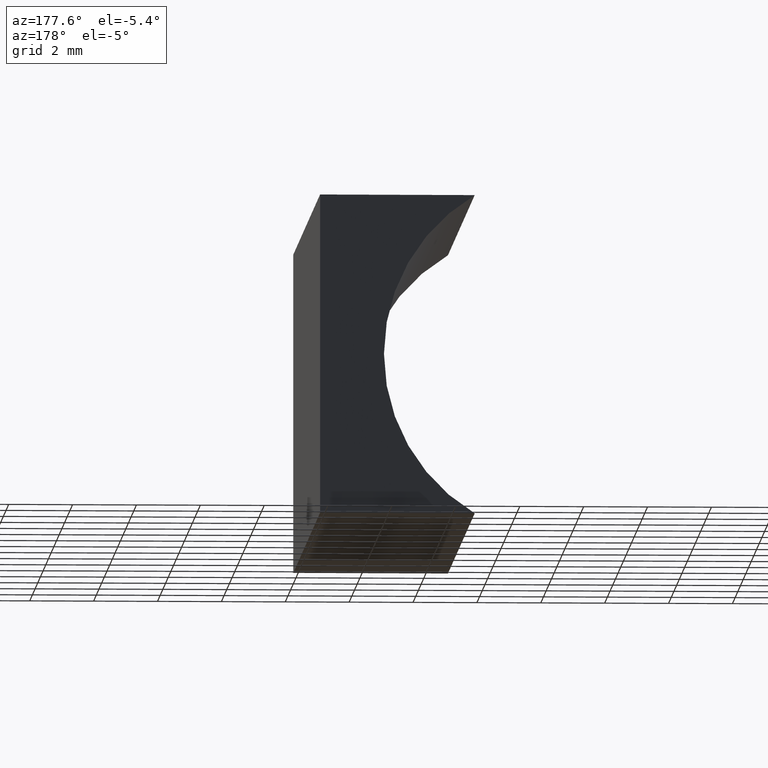
[diagram: clean part render]
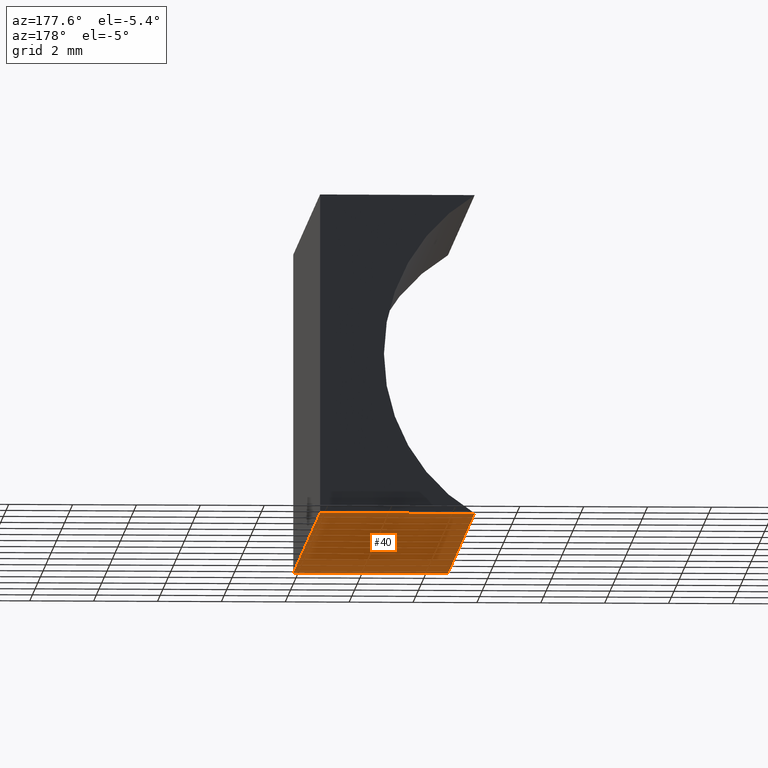
[diagram: same view with one face highlighted and labeled with its STEP entity id]
A machine part, auxiliary view. The second image highlights one B-rep face of the part: STEP entity #40.
In plain terms, the highlighted planar face has unit normal (0, -0, 1).
Its self-contained STEP definition (entity closure, byte-faithful):
#1 = VECTOR ( 'NONE', #171, 1000.000000000000000 ) ;
#16 = EDGE_LOOP ( 'NONE', ( #139, #202, #199, #27 ) ) ;
#21 = VERTEX_POINT ( 'NONE', #65 ) ;
#27 = ORIENTED_EDGE ( 'NONE', *, *, #130, .T. ) ;
#40 = ADVANCED_FACE ( 'NONE', ( #43 ), #75, .F. ) ;
#43 = FACE_OUTER_BOUND ( 'NONE', #16, .T. ) ;
#49 = LINE ( 'NONE', #204, #159 ) ;
#57 = LINE ( 'NONE', #186, #1 ) ;
#60 = DIRECTION ( 'NONE',  ( -0.0000000000000000000, -1.000000000000000000, -0.0000000000000000000 ) ) ;
#65 = CARTESIAN_POINT ( 'NONE',  ( 0.0000000000000000000, 20.00000000000000000, 0.0000000000000000000 ) ) ;
#72 = DIRECTION ( 'NONE',  ( -0.0000000000000000000, -1.000000000000000000, -0.0000000000000000000 ) ) ;
#73 = EDGE_CURVE ( 'NONE', #169, #76, #93, .T. ) ;
#75 = PLANE ( 'NONE',  #178 ) ;
#76 = VERTEX_POINT ( 'NONE', #166 ) ;
#83 = DIRECTION ( 'NONE',  ( 3.583145472076385500E-016, -0.0000000000000000000, 1.000000000000000000 ) ) ;
#84 = CARTESIAN_POINT ( 'NONE',  ( -4.841342584317566800, 20.00000000000000000, 2.602085213965210600E-015 ) ) ;
#86 = CARTESIAN_POINT ( 'NONE',  ( 0.0000000000000000000, 20.00000000000000000, 0.0000000000000000000 ) ) ;
#93 = LINE ( 'NONE', #163, #144 ) ;
#104 = DIRECTION ( 'NONE',  ( -1.000000000000000000, 0.0000000000000000000, 3.583145472076385000E-016 ) ) ;
#116 = CARTESIAN_POINT ( 'NONE',  ( 0.0000000000000000000, 0.0000000000000000000, 0.0000000000000000000 ) ) ;
#125 = EDGE_CURVE ( 'NONE', #201, #76, #57, .T. ) ;
#130 = EDGE_CURVE ( 'NONE', #21, #201, #134, .T. ) ;
#134 = LINE ( 'NONE', #151, #138 ) ;
#138 = VECTOR ( 'NONE', #60, 1000.000000000000000 ) ;
#139 = ORIENTED_EDGE ( 'NONE', *, *, #125, .T. ) ;
#142 = EDGE_CURVE ( 'NONE', #21, #169, #49, .T. ) ;
#144 = VECTOR ( 'NONE', #72, 1000.000000000000000 ) ;
#151 = CARTESIAN_POINT ( 'NONE',  ( 0.0000000000000000000, 20.00000000000000000, 0.0000000000000000000 ) ) ;
#159 = VECTOR ( 'NONE', #104, 1000.000000000000000 ) ;
#163 = CARTESIAN_POINT ( 'NONE',  ( -4.841342584317566800, 20.00000000000000000, 2.602085213965210600E-015 ) ) ;
#166 = CARTESIAN_POINT ( 'NONE',  ( -4.841342584317566800, 0.0000000000000000000, 2.602085213965210600E-015 ) ) ;
#169 = VERTEX_POINT ( 'NONE', #84 ) ;
#171 = DIRECTION ( 'NONE',  ( -1.000000000000000000, 0.0000000000000000000, 3.583145472076385000E-016 ) ) ;
#178 = AXIS2_PLACEMENT_3D ( 'NONE', #86, #83, #203 ) ;
#186 = CARTESIAN_POINT ( 'NONE',  ( 0.0000000000000000000, 0.0000000000000000000, 0.0000000000000000000 ) ) ;
#199 = ORIENTED_EDGE ( 'NONE', *, *, #142, .F. ) ;
#201 = VERTEX_POINT ( 'NONE', #116 ) ;
#202 = ORIENTED_EDGE ( 'NONE', *, *, #73, .F. ) ;
#203 = DIRECTION ( 'NONE',  ( 1.000000000000000000, 0.0000000000000000000, -3.583145472076385500E-016 ) ) ;
#204 = CARTESIAN_POINT ( 'NONE',  ( 0.0000000000000000000, 20.00000000000000000, 0.0000000000000000000 ) ) ;